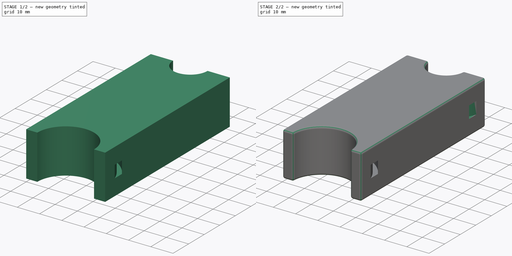
[diagram: build sequence overview — one tinted view per stage of 2, left to right]
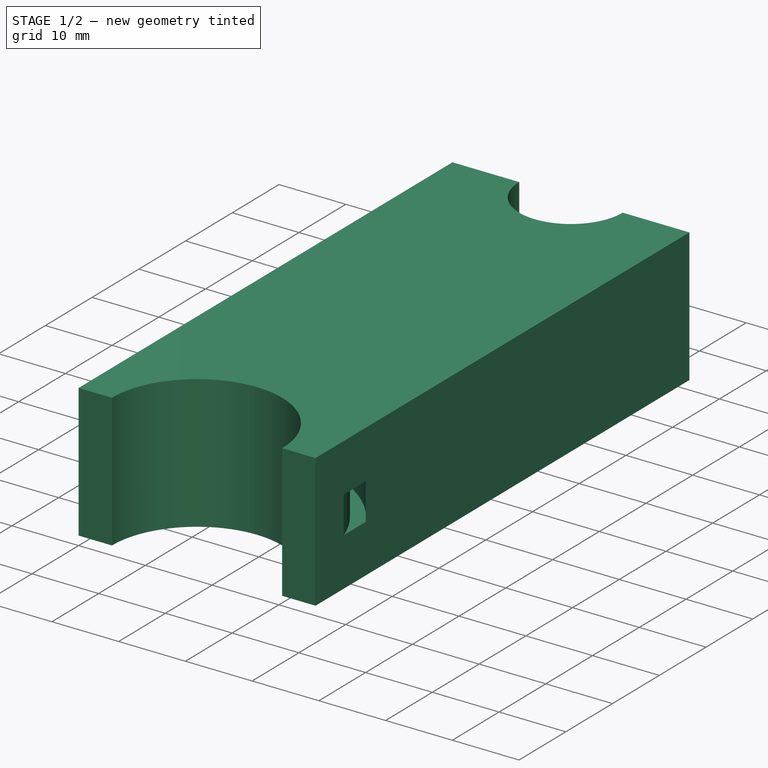
[diagram: stage 1 of 2 — iso view after this stage's code; geometry added in this stage tinted green]
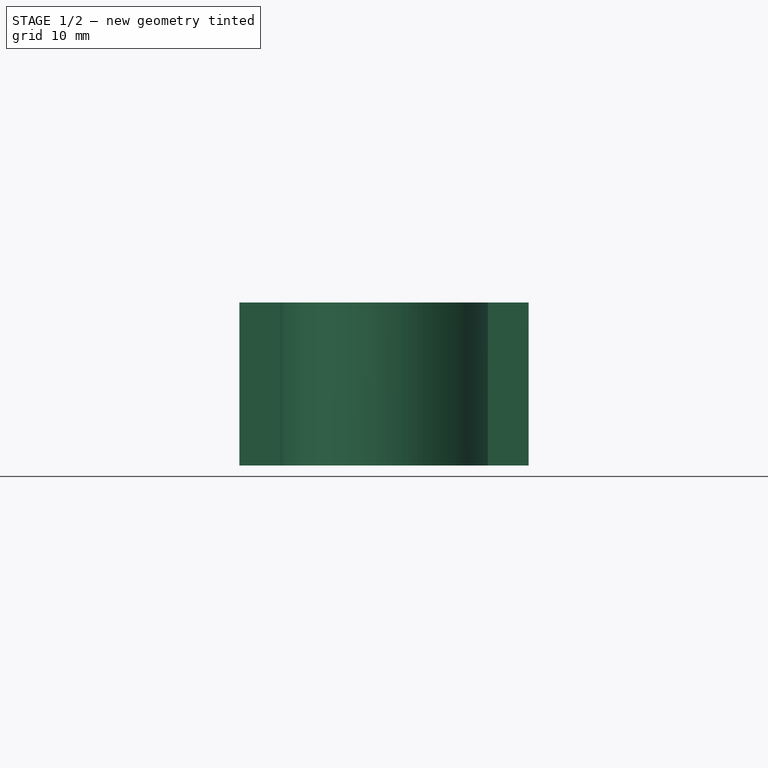
[diagram: stage 1 of 2 — front view after this stage's code; geometry added in this stage tinted green]
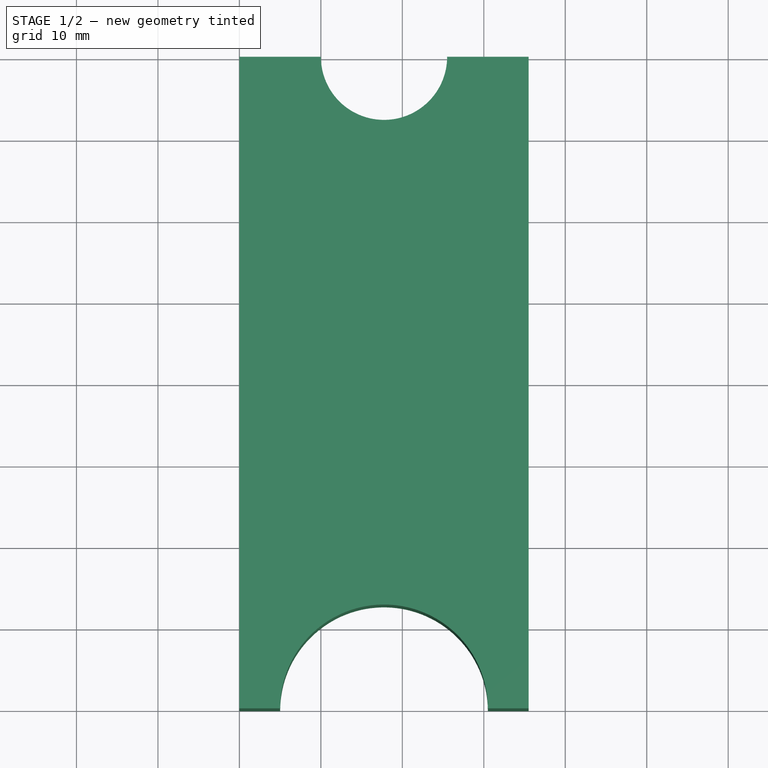
[diagram: stage 1 of 2 — top view after this stage's code; geometry added in this stage tinted green]
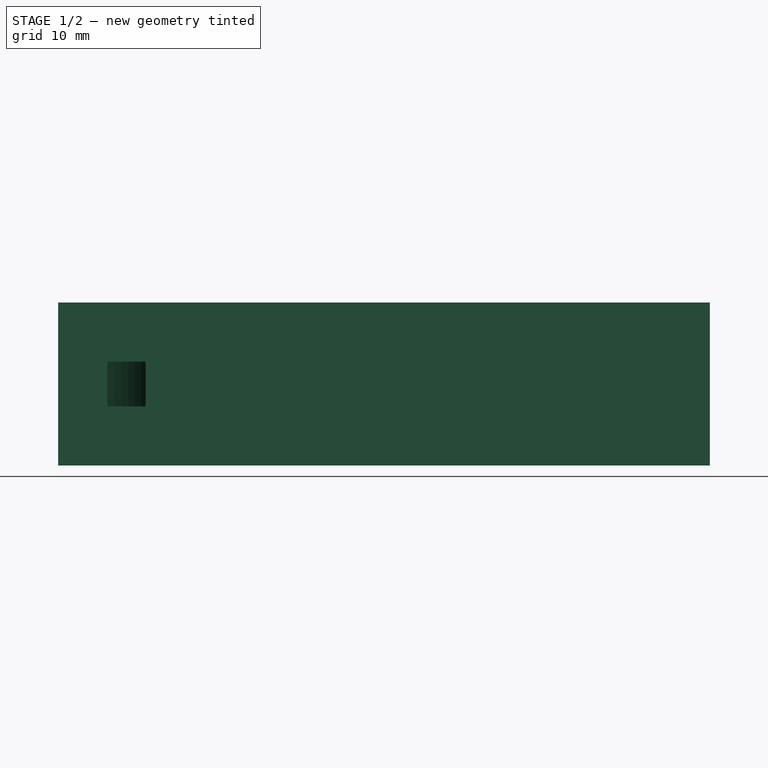
[diagram: stage 1 of 2 — right view after this stage's code; geometry added in this stage tinted green]
FCSTD DOCUMENT  (FreeCAD 1.0R39109 (Git))
Label: antenna_standoff
License: All rights reserved
objects: Sketcher::SketchObject×5, PartDesign::SubtractivePipe×2, Spreadsheet::Sheet×1, PartDesign::Pad×1, PartDesign::Fillet×1, PartDesign::Body×1
note: 23 computed .brp shape members not serialized (recipe doc carries the construction recipe); baked Part::Feature solids carry a one-line shape summary decoded from their .brp

FEATURE [Spreadsheet::Sheet] Spreadsheet  label="dimensions"
  cells = A1='antenna_diameter; B1(antenna_diameter)==25.5 mm; A2='fence_diameter; B2(fence_diameter)==15.5 mm; A3='depth; B3(depth)==80 mm; A4='height; B4(height)==20 mm; A5='offset; B5(offset)==10 mm
FEATURE [Sketcher::SketchObject] Sketch
  ArcFitTolerance = 1e-06
  AttachmentSupport = -> [XY_Plane]
  FullyConstrained = true
  MakeInternals = false
  MapMode = 5
  expr: Constraints[10] = <<dimensions>>.depth
  expr: Constraints[12] = <<dimensions>>.antenna_diameter
  expr: Constraints[13] = <<dimensions>>.antenna_diameter / 2 + <<dimensions>>.offset / 2
  expr: Constraints[15] = <<dimensions>>.fence_diameter
  expr: Constraints[16] = <<dimensions>>.antenna_diameter / 2 + <<dimensions>>.offset / 2
  expr: Constraints[9] = <<dimensions>>.antenna_diameter + <<dimensions>>.offset
  sketch-geometry (8):
    g0: LineSegment StartX=0 StartY=1.6e-15 StartZ=0 EndX=5 EndY=1.6e-15 EndZ=0
    g1: LineSegment StartX=35.5 StartY=0 StartZ=0 EndX=35.5 EndY=80 EndZ=0
    g2: LineSegment StartX=35.5 StartY=80 StartZ=0 EndX=25.5 EndY=80 EndZ=0
    g3: LineSegment StartX=0 StartY=80 StartZ=0 EndX=0 EndY=0 EndZ=0
    g4: ArcOfCircle CenterX=17.75 CenterY=0 CenterZ=0 NormalX=0 NormalY=0 NormalZ=1 AngleXU=0 Radius=12.75 StartAngle=0 EndAngle=3.14159
    g5: ArcOfCircle CenterX=17.75 CenterY=80 CenterZ=0 NormalX=0 NormalY=0 NormalZ=1 AngleXU=0 Radius=7.75 StartAngle=3.14159 EndAngle=6.28319
    g6: LineSegment StartX=30.5 StartY=0 StartZ=0 EndX=35.5 EndY=0 EndZ=0
    g7: LineSegment StartX=10 StartY=80 StartZ=0 EndX=0 EndY=80 EndZ=0
  constraints (27):
    c: Coincident(g6,g1)
    c: Coincident(g1,g2)
    c: Coincident(g7,g3)
    c: Coincident(g3,g0)
    c: Horizontal(g0)
    c: Horizontal(g2)
    c: Vertical(g1)
    c: Vertical(g3)
    c: Coincident(g0,g-1)
    c: DistanceX(g0,g6) = 35.5
    c: DistanceY(g1,g1) = 80
    c: PointOnObject(g4,g0)
    c: Diameter(g4) = 25.5
    c: DistanceX(g0,g4) = 17.75
    c: PointOnObject(g5,g2)
    c: Diameter(g5) = 15.5
    c: DistanceX(g7,g5) = 17.75
    c: PointOnObject(g4,g6)
    c: Coincident(g0,g4)
    c: PointOnObject(g6,g4)
    c: PointOnObject(g5,g7)
    c: Coincident(g2,g5)
    c: PointOnObject(g7,g5)
    c: Horizontal(g6)
    c: PointOnObject(g1,g-1)
    c: Horizontal(g7)
    c: Horizontal(g5,g2)
FEATURE [PartDesign::Pad] Pad
  Direction = (0,0,1)
  Length = 20
  Length2 = 10
  Profile = -> Sketch
  ReferenceAxis = -> Sketch [N_Axis]
  Refine = true
  Suppressed = false
  Type = 0
  expr: Length = <<dimensions>>.height
FEATURE [Sketcher::SketchObject] Sketch001
  ArcFitTolerance = 1e-06
  AttachmentOffset = pos=(0,0,10) rot=(0,0,1;0rad)
  AttachmentSupport = -> [XY_Plane]
  FullyConstrained = true
  MakeInternals = false
  MapMode = 5
  Placement = pos=(0,0,10) rot=(0,0,1;0rad)
  expr: Constraints[1] = <<dimensions>>.antenna_diameter / 2 + <<dimensions>>.offset / 2
  sketch-geometry (1):
    g0: Circle CenterX=17.75 CenterY=0 CenterZ=0 NormalX=0 NormalY=0 NormalZ=1 AngleXU=0 Radius=20
  constraints (3):
    c: PointOnObject(g0,g-1)
    c: DistanceX(g-1,g0) = 17.75
    c: Diameter(g0) = 40
FEATURE [Sketcher::SketchObject] Sketch002
  ArcFitTolerance = 1e-06
  AttachmentSupport = -> [XZ_Plane]
  FullyConstrained = true
  MakeInternals = false
  MapMode = 5
  Placement = pos=(0,0,0) rot=(1,0,0;1.5708rad)
  sketch-geometry (4):
    g0: LineSegment StartX=36.5 StartY=12.75 StartZ=0 EndX=36.5 EndY=7.25 EndZ=0
    g1: LineSegment StartX=36.5 StartY=7.25 StartZ=0 EndX=38.5 EndY=7.25 EndZ=0
    g2: LineSegment StartX=38.5 StartY=7.25 StartZ=0 EndX=38.5 EndY=12.75 EndZ=0
    g3: LineSegment StartX=38.5 StartY=12.75 StartZ=0 EndX=36.5 EndY=12.75 EndZ=0
  constraints (12):
    c: Coincident(g0,g1)
    c: Coincident(g1,g2)
    c: Coincident(g2,g3)
    c: Coincident(g3,g0)
    c: Vertical(g0)
    c: Vertical(g2)
    c: Horizontal(g1)
    c: Horizontal(g3)
    c: DistanceX(g1,g1) = 2
    c: DistanceY(g2,g2) = 5.5
    c: DistanceX(g-1,g0) = 36.5
    c: DistanceY(g-1,g0) = 7.25
FEATURE [PartDesign::SubtractivePipe] SubtractivePipe
  AuxilleryCurvelinear = true
  AuxillerySpineTangent = false
  BaseFeature = -> Pad
  Binormal = (0,0,0)
  Mode = 0
  Profile = -> Sketch002
  Refine = true
  Spine = -> Sketch001 [Edge1]
  SpineTangent = false
  Suppressed = false
  Transformation = 0
  Transition = 0
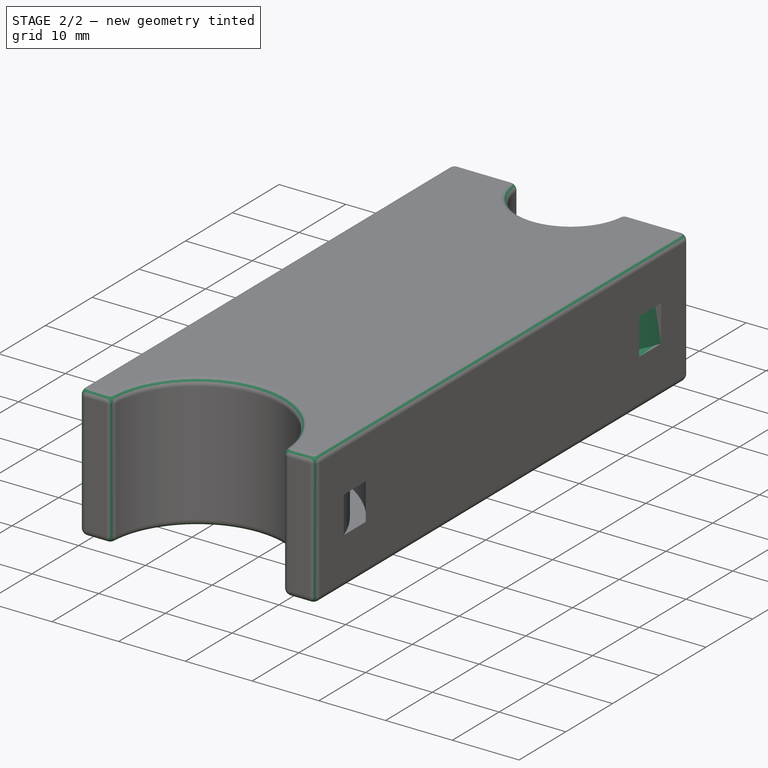
[diagram: stage 2 of 2 — iso view after this stage's code; geometry added in this stage tinted green]
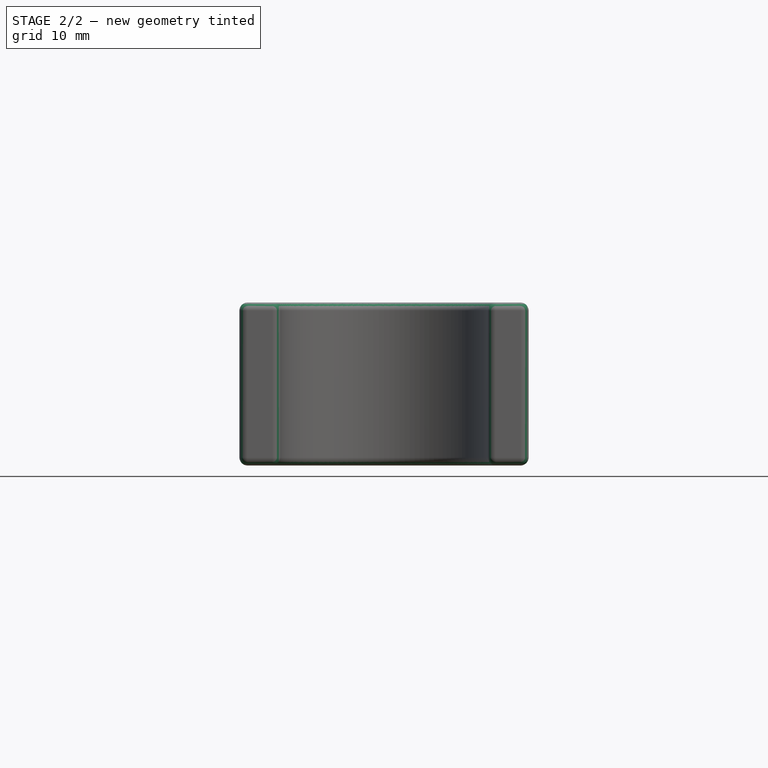
[diagram: stage 2 of 2 — front view after this stage's code; geometry added in this stage tinted green]
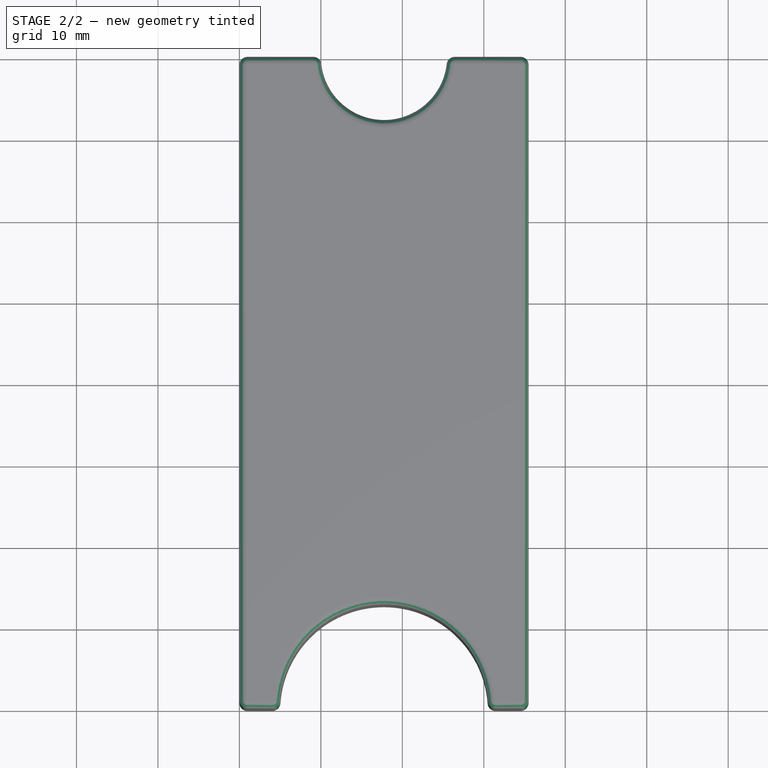
[diagram: stage 2 of 2 — top view after this stage's code; geometry added in this stage tinted green]
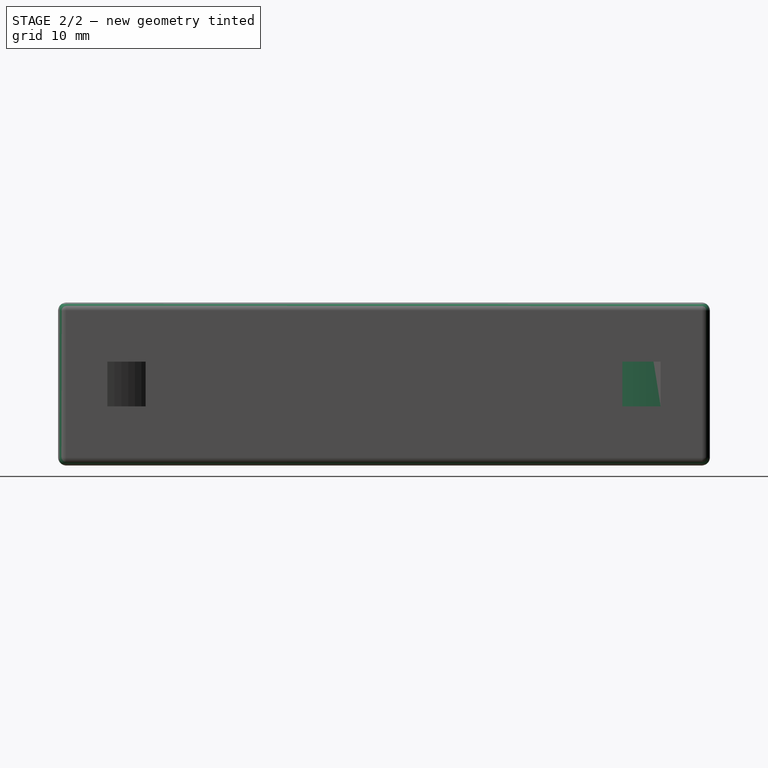
[diagram: stage 2 of 2 — right view after this stage's code; geometry added in this stage tinted green]
FEATURE [Sketcher::SketchObject] Sketch003
  ArcFitTolerance = 1e-06
  AttachmentOffset = pos=(0,0,10) rot=(0,0,1;0rad)
  AttachmentSupport = -> [XY_Plane]
  FullyConstrained = true
  MakeInternals = false
  MapMode = 5
  Placement = pos=(0,0,10) rot=(0,0,1;0rad)
  expr: Constraints[0] = <<dimensions>>.depth
  expr: Constraints[1] = <<dimensions>>.antenna_diameter / 2 + <<dimensions>>.offset / 2
  sketch-geometry (1):
    g0: Circle CenterX=17.75 CenterY=80 CenterZ=0 NormalX=0 NormalY=0 NormalZ=1 AngleXU=0 Radius=20
  constraints (3):
    c: DistanceY(g-1,g0) = 80
    c: DistanceX(g-1,g0) = 17.75
    c: Diameter(g0) = 40
FEATURE [Sketcher::SketchObject] Sketch004
  ArcFitTolerance = 1e-06
  AttachmentOffset = pos=(0,0,-80) rot=(0,0,1;0rad)
  AttachmentSupport = -> [XZ_Plane]
  FullyConstrained = true
  MakeInternals = false
  MapMode = 5
  Placement = pos=(0,80,-1.78e-14) rot=(1,0,0;1.5708rad)
  expr: .AttachmentOffset.Base.z = -<<dimensions>>.depth
  sketch-geometry (4):
    g0: LineSegment StartX=36.5 StartY=12.75 StartZ=0 EndX=36.5 EndY=7.25 EndZ=0
    g1: LineSegment StartX=36.5 StartY=7.25 StartZ=0 EndX=38.5 EndY=7.25 EndZ=0
    g2: LineSegment StartX=38.5 StartY=7.25 StartZ=0 EndX=38.5 EndY=12.75 EndZ=0
    g3: LineSegment StartX=38.5 StartY=12.75 StartZ=0 EndX=36.5 EndY=12.75 EndZ=0
  constraints (12):
    c: Coincident(g0,g1)
    c: Coincident(g1,g2)
    c: Coincident(g2,g3)
    c: Coincident(g3,g0)
    c: Vertical(g0)
    c: Vertical(g2)
    c: Horizontal(g1)
    c: Horizontal(g3)
    c: DistanceX(g1,g1) = 2
    c: DistanceY(g2,g2) = 5.5
    c: DistanceX(g-1,g0) = 36.5
    c: DistanceY(g-1,g0) = 7.25
FEATURE [PartDesign::SubtractivePipe] SubtractivePipe001
  AuxilleryCurvelinear = true
  AuxillerySpineTangent = false
  BaseFeature = -> SubtractivePipe
  Binormal = (0,0,0)
  Mode = 0
  Profile = -> Sketch004
  Refine = true
  Spine = -> Sketch003 [Edge1]
  SpineTangent = false
  Suppressed = false
  Transformation = 0
  Transition = 0
FEATURE [PartDesign::Fillet] Fillet
  Base = -> SubtractivePipe001 [Edge27,Edge26,Edge25,Edge24,Edge9,Edge28,Edge7,Edge4,Edge2,Edge29,Edge48,Edge22,Edge3,Edge23,Edge6,Edge5,Edge1,Edge8,Edge10,Edge19,Edge20,Edge21,Edge47,Edge30]
  BaseFeature = -> SubtractivePipe001
  Radius = 1
  Refine = true
  SupportTransform = false
  Suppressed = false
  UseAllEdges = false
FEATURE [PartDesign::Body] Body  label="Körper"
  AllowCompound = false
  Group = -> [Sketch,Pad,Sketch001,Sketch002,SubtractivePipe,Sketch003,Sketch004,SubtractivePipe001,Fillet]
  Origin = -> Origin
  Tip = -> Fillet
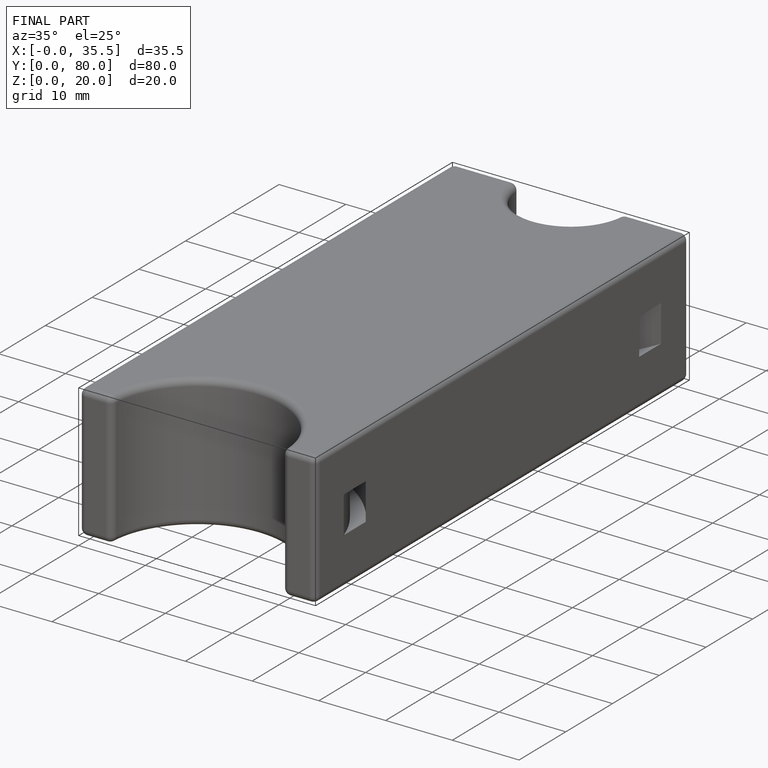
[diagram: finished part — iso view with bounding-box wireframe]
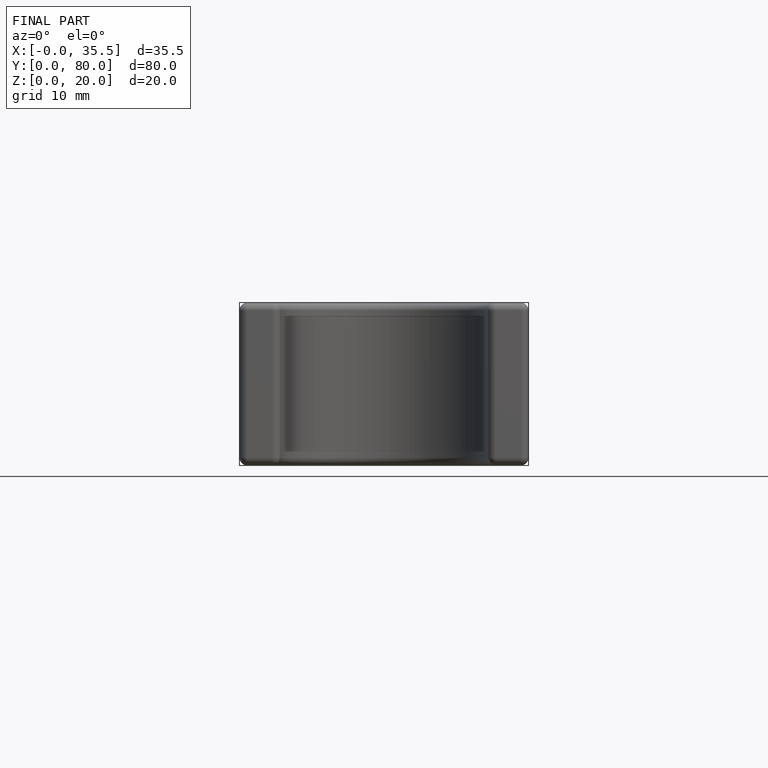
[diagram: finished part — front view with bounding-box wireframe]
